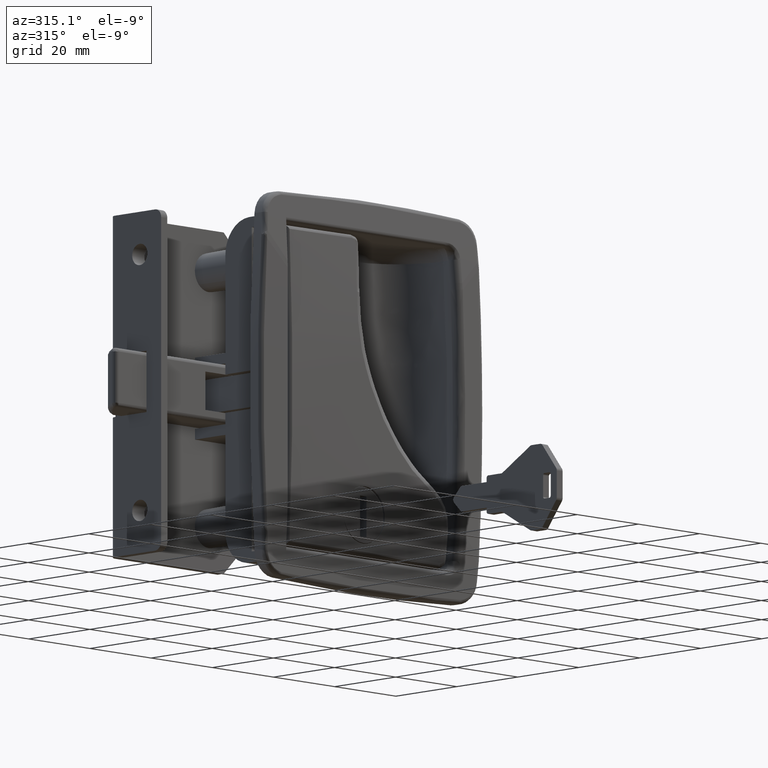
[diagram: clean part render]
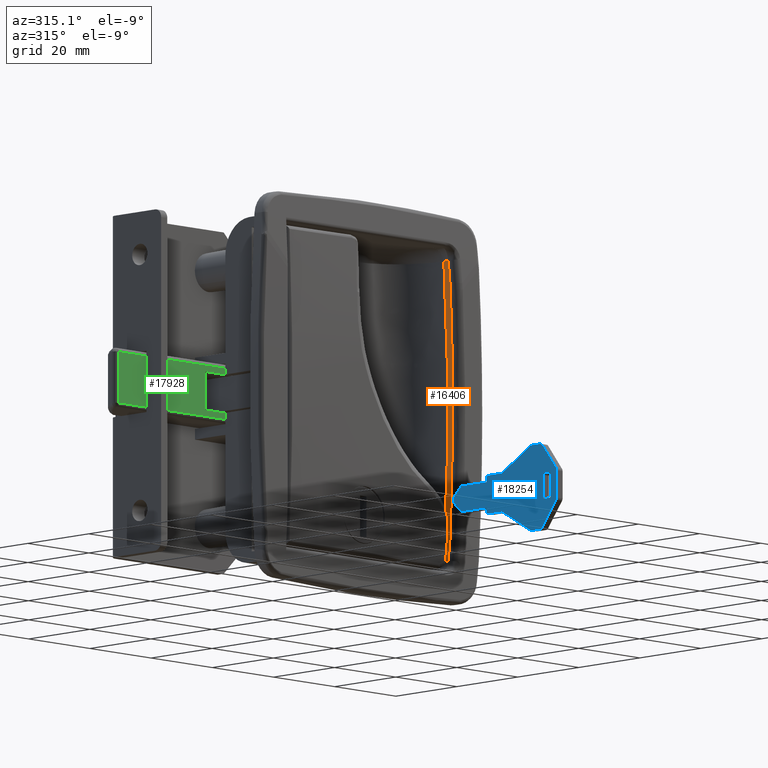
[diagram: same view with three faces highlighted in distinct colors, each labeled with its STEP entity id]
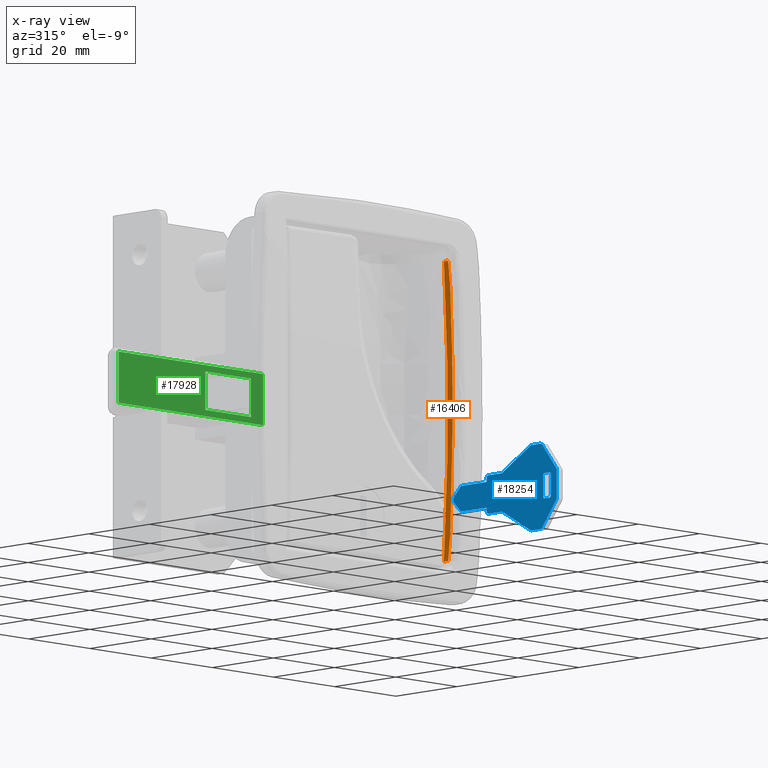
[diagram: x-ray of the same camera — body ghosted, the three highlighted faces saturated]
A machine part, auxiliary view with three faces highlighted in distinct colors.
The next image is the same camera in x-ray (body ghosted, the three faces saturated) — at least one of them is partly hidden behind the body in this view.
Their STEP definitions:

[orange] entity #16406 — the highlighted face is a freeform B-spline surface patch.
#10095=CARTESIAN_POINT('',(26.758622791532201,-30.604169728557949,-35.211307289764001));
#10096=VERTEX_POINT('',#10095);
#10200=CARTESIAN_POINT('',(27.113537786941901,-30.860131355958551,-29.761478573797952));
#10201=VERTEX_POINT('',#10200);
#10213=CARTESIAN_POINT('',(26.758622791532201,-30.604169728557949,-35.211307289764001));
#10214=CARTESIAN_POINT('',(27.113537786941901,-30.860131355958551,-29.761478573797952));
#10215=QUASI_UNIFORM_CURVE('',1,(#10213,#10214),.UNSPECIFIED.,.F.,.U.);
#10216=EDGE_CURVE('',#10096,#10201,#10215,.T.);
#10277=CARTESIAN_POINT('',(27.196989141972651,-30.889219502057500,-28.327593194271849));
#10278=VERTEX_POINT('',#10277);
#10291=CARTESIAN_POINT('',(27.113537786941901,-30.860131355958551,-29.761478573797952));
#10292=CARTESIAN_POINT('',(27.196989141972651,-30.889219502057500,-28.327593194271849));
#10293=QUASI_UNIFORM_CURVE('',1,(#10291,#10292),.UNSPECIFIED.,.F.,.U.);
#10294=EDGE_CURVE('',#10201,#10278,#10293,.T.);
#10357=CARTESIAN_POINT('',(27.197345827099848,-30.889204510851400,28.327967213543950));
#10358=VERTEX_POINT('',#10357);
#10371=CARTESIAN_POINT('',(27.196989141972651,-30.889219502057500,-28.327593194271849));
#10372=CARTESIAN_POINT('',(27.254569357953962,-30.886799591181781,-27.279426471170030));
#10373=CARTESIAN_POINT('',(27.369729717387980,-30.881959772479629,-25.183094345244641));
#10374=CARTESIAN_POINT('',(27.517351379151190,-30.875756583052389,-22.037295222003980));
#10375=CARTESIAN_POINT('',(27.646576948009091,-30.870326840192540,-18.890704624268640));
#10376=CARTESIAN_POINT('',(27.755598388219600,-30.865746399319640,-15.743344890375450));
#10377=CARTESIAN_POINT('',(27.844894514019799,-30.861994935061940,-12.595368370290100));
#10378=CARTESIAN_POINT('',(27.914332377492780,-30.859077893613371,-9.446892609685405));
#10379=CARTESIAN_POINT('',(27.963943953335370,-30.856993815538150,-6.298044505583258));
#10380=CARTESIAN_POINT('',(27.993718008118570,-30.855743092392022,-3.148948469709340));
#10381=CARTESIAN_POINT('',(28.003655940259730,-30.855325617387120,0.000270410241956));
#10382=CARTESIAN_POINT('',(27.993756551021860,-30.855741426119550,3.149487208783639));
#10383=CARTESIAN_POINT('',(27.964021120858881,-30.856990482992689,6.298577000937264));
#10384=CARTESIAN_POINT('',(27.914448333087890,-30.859072894797059,9.447414700600445));
#10385=CARTESIAN_POINT('',(27.845049502715760,-30.861988269967291,12.595875898521330));
#10386=CARTESIAN_POINT('',(27.755792737184699,-30.865738067972821,15.743833701780529));
#10387=CARTESIAN_POINT('',(27.646811063948078,-30.870316842504799,18.891170567624819));
#10388=CARTESIAN_POINT('',(27.517625759083462,-30.875744919320670,22.037734158409389));
#10389=CARTESIAN_POINT('',(27.370044903355740,-30.881946441722839,25.183502117669310));
#10390=CARTESIAN_POINT('',(27.254912183176309,-30.886785154587450,27.279812230302259));
#10391=CARTESIAN_POINT('',(27.197345827099848,-30.889204510851400,28.327967213543950));
#10392=B_SPLINE_CURVE_WITH_KNOTS('',3,(#10371,#10372,#10373,#10374,#10375,#10376,#10377,#10378,#10379,#10380,#10381,#10382,#10383,#10384,#10385,#10386,#10387,#10388,#10389,#10390,#10391),.UNSPECIFIED.,.F.,.U.,(4,1,1,1,1,1,1,1,1,1,1,1,1,1,1,1,1,1,4),(0.0,0.055555974050515,0.111111878122415,0.166667716105144,0.222223491888147,0.277779209360896,0.333334872412882,0.388890484933575,0.444446050812489,0.500001573939135,0.555557058203031,0.611112507493706,0.666667925700701,0.722223316713549,0.777778684421803,0.833334032715016,0.888889365482747,0.944444686614554,1.000000000000000),.UNSPECIFIED.);
#10393=EDGE_CURVE('',#10278,#10358,#10392,.T.);
#10473=CARTESIAN_POINT('',(27.113910496989199,-30.860114897629849,29.761887682028249));
#10474=VERTEX_POINT('',#10473);
#10487=CARTESIAN_POINT('',(27.197345827099848,-30.889204510851400,28.327967213543950));
#10488=CARTESIAN_POINT('',(27.113910496989199,-30.860114897629849,29.761887682028249));
#10489=QUASI_UNIFORM_CURVE('',1,(#10487,#10488),.UNSPECIFIED.,.F.,.U.);
#10490=EDGE_CURVE('',#10358,#10474,#10489,.T.);
#10553=CARTESIAN_POINT('',(26.759081579812399,-30.604162881589399,35.211468298201751));
#10554=VERTEX_POINT('',#10553);
#10566=CARTESIAN_POINT('',(27.113910496989199,-30.860114897629849,29.761887682028249));
#10567=CARTESIAN_POINT('',(26.759081579812399,-30.604162881589399,35.211468298201751));
#10568=QUASI_UNIFORM_CURVE('',1,(#10566,#10567),.UNSPECIFIED.,.F.,.U.);
#10569=EDGE_CURVE('',#10474,#10554,#10568,.T.);
#13532=CARTESIAN_POINT('',(26.758622791532051,-29.199999999999999,-35.211307289764001));
#13533=VERTEX_POINT('',#13532);
#13823=CARTESIAN_POINT('',(26.759081579812449,-29.199999999999999,35.211468298201751));
#13824=VERTEX_POINT('',#13823);
#13934=CARTESIAN_POINT('',(26.758622791532179,-29.199999999999999,-35.211307289763973));
#13935=CARTESIAN_POINT('',(29.244937842971169,-29.199999999999999,0.000064307939087));
#13936=CARTESIAN_POINT('',(26.759081579812449,-29.199999999999999,35.211468298201751));
#13944=(BOUNDED_CURVE()B_SPLINE_CURVE(2,(#13934,#13935,#13936),.UNSPECIFIED.,.F.,.U.)CURVE()GEOMETRIC_REPRESENTATION_ITEM()QUASI_UNIFORM_CURVE()RATIONAL_B_SPLINE_CURVE((1.0,0.997516776139182,1.0))REPRESENTATION_ITEM(''));
#13945=EDGE_CURVE('',#13533,#13824,#13944,.T.);
#13984=CARTESIAN_POINT('',(26.758622791532201,-30.604169728557949,-35.211307289764001));
#13985=CARTESIAN_POINT('',(26.758622791532051,-29.199999999999999,-35.211307289764001));
#13986=QUASI_UNIFORM_CURVE('',1,(#13984,#13985),.UNSPECIFIED.,.F.,.U.);
#13987=EDGE_CURVE('',#10096,#13533,#13986,.T.);
#14007=CARTESIAN_POINT('',(26.759081579812449,-29.199999999999999,35.211468298201751));
#14008=CARTESIAN_POINT('',(26.759081579812399,-30.604162881589399,35.211468298201751));
#14009=QUASI_UNIFORM_CURVE('',1,(#14007,#14008),.UNSPECIFIED.,.F.,.U.);
#14010=EDGE_CURVE('',#13824,#10554,#14009,.T.);
#16382=CARTESIAN_POINT('',(26.499236843947664,-29.157769512448564,38.716650710810157));
#16383=CARTESIAN_POINT('',(26.499236843947664,-30.932505751797724,38.716650710810157));
#16384=CARTESIAN_POINT('',(29.506420937829365,-29.157769512448557,-0.002305512205700));
#16385=CARTESIAN_POINT('',(29.506420937829365,-30.932505751797724,-0.002305512205700));
#16386=CARTESIAN_POINT('',(26.498366658231088,-29.157769512448553,-38.721194140694301));
#16387=CARTESIAN_POINT('',(26.498366658231088,-30.932505751797731,-38.721194140694301));
#16395=(BOUNDED_SURFACE()B_SPLINE_SURFACE(1,2,((#16382,#16384,#16386),(#16383,#16385,#16387)),.UNSPECIFIED.,.F.,.F.,.U.)B_SPLINE_SURFACE_WITH_KNOTS((2,2),(3,3),(0.0,1.0),(17.609950515079500,95.164248017024988),.UNSPECIFIED.)GEOMETRIC_REPRESENTATION_ITEM()RATIONAL_B_SPLINE_SURFACE(((0.998003145779610,0.994306683182898,0.996601251983573),(0.998003145779610,0.994306683182898,0.996601251983573)))REPRESENTATION_ITEM('')SURFACE());
#16396=ORIENTED_EDGE('',*,*,#13987,.F.);
#16397=ORIENTED_EDGE('',*,*,#10216,.T.);
#16398=ORIENTED_EDGE('',*,*,#10294,.T.);
#16399=ORIENTED_EDGE('',*,*,#10393,.T.);
#16400=ORIENTED_EDGE('',*,*,#10490,.T.);
#16401=ORIENTED_EDGE('',*,*,#10569,.T.);
#16402=ORIENTED_EDGE('',*,*,#14010,.F.);
#16403=ORIENTED_EDGE('',*,*,#13945,.F.);
#16404=EDGE_LOOP('',(#16396,#16397,#16398,#16399,#16400,#16401,#16402,#16403));
#16405=FACE_OUTER_BOUND('',#16404,.T.);
#16406=ADVANCED_FACE('',(#16405),#16395,.F.);

[blue] entity #18254 — the highlighted face is a freeform B-spline surface patch.
#17970=CARTESIAN_POINT('',(-3.950000000000096,-98.752650072939815,-17.001000038763880));
#17971=CARTESIAN_POINT('',(-3.950000000000096,-61.356090713217121,-17.001000038763880));
#17972=CARTESIAN_POINT('',(-3.950000000000096,-98.752650072939815,-38.999000497677919));
#17973=CARTESIAN_POINT('',(-3.950000000000096,-61.356090713217121,-38.999000497677919));
#17974=B_SPLINE_SURFACE_WITH_KNOTS('',1,1,((#17970,#17972),(#17971,#17973)),.UNSPECIFIED.,.F.,.F.,.U.,(2,2),(2,2),(0.0,37.396559359722687),(0.0,21.998000458914039),.UNSPECIFIED.);
#17975=CARTESIAN_POINT('',(-3.950000000000120,-88.299642658539398,-18.147855169568800));
#17976=VERTEX_POINT('',#17975);
#17977=CARTESIAN_POINT('',(-3.950000000000120,-88.822948676056399,-18.0));
#17978=VERTEX_POINT('',#17977);
#17979=CARTESIAN_POINT('',(-3.950000000000120,-88.299642658539398,-18.147855169568800));
#17980=CARTESIAN_POINT('',(-3.950000000000127,-88.455957832519616,-18.051432423881309));
#17981=CARTESIAN_POINT('',(-3.950000000000120,-88.639315661924797,-17.999747480380851));
#17982=CARTESIAN_POINT('',(-3.950000000000120,-88.822948676056399,-18.0));
#17983=B_SPLINE_CURVE_WITH_KNOTS('',3,(#17979,#17980,#17981,#17982),.UNSPECIFIED.,.F.,.U.,(4,4),(0.000000029010356,0.550753165426561),.UNSPECIFIED.);
#17984=EDGE_CURVE('',#17976,#17978,#17983,.T.);
#17985=ORIENTED_EDGE('',*,*,#17984,.F.);
#17986=CARTESIAN_POINT('',(-3.950000000000120,-79.054348676056506,-23.500000000000000));
#17987=VERTEX_POINT('',#17986);
#17988=CARTESIAN_POINT('',(-3.950000000000120,-79.054348676056506,-23.500000000000000));
#17989=CARTESIAN_POINT('',(-3.950000000000120,-88.299642658539398,-18.147855169568800));
#17990=QUASI_UNIFORM_CURVE('',1,(#17988,#17989),.UNSPECIFIED.,.F.,.U.);
#17991=EDGE_CURVE('',#17987,#17976,#17990,.T.);
#17992=ORIENTED_EDGE('',*,*,#17991,.F.);
#17993=CARTESIAN_POINT('',(-3.950000000000120,-74.554348676056392,-23.500000000000000));
#17994=VERTEX_POINT('',#17993);
#17995=CARTESIAN_POINT('',(-3.950000000000120,-74.554348676056392,-23.500000000000000));
#17996=CARTESIAN_POINT('',(-3.950000000000120,-79.054348676056506,-23.500000000000000));
#17997=QUASI_UNIFORM_CURVE('',1,(#17995,#17996),.UNSPECIFIED.,.F.,.U.);
#17998=EDGE_CURVE('',#17994,#17987,#17997,.T.);
#17999=ORIENTED_EDGE('',*,*,#17998,.F.);
#18000=CARTESIAN_POINT('',(-3.950000000000120,-74.054348676056492,-24.0));
#18001=VERTEX_POINT('',#18000);
#18002=CARTESIAN_POINT('',(-3.950000000000120,-74.054348676056492,-24.0));
#18003=CARTESIAN_POINT('',(-3.950000000000120,-74.054237184002503,-23.926345759821281));
#18004=CARTESIAN_POINT('',(-3.950000000000123,-74.081976812988927,-23.803730203466881));
#18005=CARTESIAN_POINT('',(-3.950000000000117,-74.187642373025000,-23.645531928958839));
#18006=CARTESIAN_POINT('',(-3.950000000000125,-74.341719806141512,-23.531290552471500));
#18007=CARTESIAN_POINT('',(-3.950000000000117,-74.480695366629831,-23.499887141924098));
#18008=CARTESIAN_POINT('',(-3.950000000000120,-74.554348676056392,-23.500000000000000));
#18009=B_SPLINE_CURVE_WITH_KNOTS('',3,(#18002,#18003,#18004,#18005,#18006,#18007,#18008),.UNSPECIFIED.,.F.,.U.,(4,1,1,1,4),(0.000000378534883,0.220921391118537,0.368215093996019,0.564555929128732,0.785476941711496),.UNSPECIFIED.);
#18010=EDGE_CURVE('',#18001,#17994,#18009,.T.);
#18011=ORIENTED_EDGE('',*,*,#18010,.F.);
#18012=CARTESIAN_POINT('',(-3.950000000000120,-74.054348676056492,-25.0));
#18013=VERTEX_POINT('',#18012);
#18014=CARTESIAN_POINT('',(-3.950000000000120,-74.054348676056492,-25.0));
#18015=CARTESIAN_POINT('',(-3.950000000000120,-74.054348676056492,-24.0));
#18016=QUASI_UNIFORM_CURVE('',1,(#18014,#18015),.UNSPECIFIED.,.F.,.U.);
#18017=EDGE_CURVE('',#18013,#18001,#18016,.T.);
#18018=ORIENTED_EDGE('',*,*,#18017,.F.);
#18019=CARTESIAN_POINT('',(-3.950000000000120,-65.640048676056395,-25.0));
#18020=VERTEX_POINT('',#18019);
#18021=CARTESIAN_POINT('',(-3.950000000000120,-65.640048676056395,-25.0));
#18022=CARTESIAN_POINT('',(-3.950000000000120,-74.054348676056492,-25.0));
#18023=QUASI_UNIFORM_CURVE('',1,(#18021,#18022),.UNSPECIFIED.,.F.,.U.);
#18024=EDGE_CURVE('',#18020,#18013,#18023,.T.);
#18025=ORIENTED_EDGE('',*,*,#18024,.F.);
#18026=CARTESIAN_POINT('',(-3.950000000000120,-63.356228216140387,-27.284019676634450));
#18027=VERTEX_POINT('',#18026);
#18028=CARTESIAN_POINT('',(-3.950000000000120,-63.356228216140387,-27.284019676634450));
#18029=CARTESIAN_POINT('',(-3.950000000000120,-65.640048676056395,-25.0));
#18030=QUASI_UNIFORM_CURVE('',1,(#18028,#18029),.UNSPECIFIED.,.F.,.U.);
#18031=EDGE_CURVE('',#18027,#18020,#18030,.T.);
#18032=ORIENTED_EDGE('',*,*,#18031,.F.);
#18033=CARTESIAN_POINT('',(-3.950000000000120,-63.338307461306997,-28.698058005311950));
#18034=VERTEX_POINT('',#18033);
#18035=CARTESIAN_POINT('',(-3.950000000000120,-63.338307461306997,-28.698058005311950));
#18036=CARTESIAN_POINT('',(-3.950000000000125,-63.223780295208620,-28.581084688618059));
#18037=CARTESIAN_POINT('',(-3.950000000000113,-63.097041002369309,-28.362363250925299));
#18038=CARTESIAN_POINT('',(-3.950000000000130,-63.046205515848612,-28.044896671843389));
#18039=CARTESIAN_POINT('',(-3.950000000000121,-63.063857519878233,-27.806864193721271));
#18040=CARTESIAN_POINT('',(-3.950000000000110,-63.148586269830041,-27.539725201607649));
#18041=CARTESIAN_POINT('',(-3.950000000000141,-63.268286162478731,-27.369626759226009));
#18042=CARTESIAN_POINT('',(-3.950000000000120,-63.356228216140387,-27.284019676634450));
#18043=B_SPLINE_CURVE_WITH_KNOTS('',3,(#18035,#18036,#18037,#18038,#18039,#18040,#18041,#18042),.UNSPECIFIED.,.F.,.U.,(4,1,1,1,1,4),(0.000000306657854,0.490879351851221,0.736330826735464,0.957183011896125,1.202634849029702,1.570786579639568),.UNSPECIFIED.);
#18044=EDGE_CURVE('',#18034,#18027,#18043,.T.);
#18045=ORIENTED_EDGE('',*,*,#18044,.F.);
#18046=CARTESIAN_POINT('',(-3.950000000000120,-65.640048676056395,-31.0));
#18047=VERTEX_POINT('',#18046);
#18048=CARTESIAN_POINT('',(-3.950000000000120,-65.640048676056395,-31.0));
#18049=CARTESIAN_POINT('',(-3.950000000000120,-63.338307461306997,-28.698058005311950));
#18050=QUASI_UNIFORM_CURVE('',1,(#18048,#18049),.UNSPECIFIED.,.F.,.U.);
#18051=EDGE_CURVE('',#18047,#18034,#18050,.T.);
#18052=ORIENTED_EDGE('',*,*,#18051,.F.);
#18053=CARTESIAN_POINT('',(-3.950000000000120,-74.054348676056492,-31.0));
#18054=VERTEX_POINT('',#18053);
#18055=CARTESIAN_POINT('',(-3.950000000000120,-74.054348676056492,-31.0));
#18056=CARTESIAN_POINT('',(-3.950000000000120,-65.640048676056395,-31.0));
#18057=QUASI_UNIFORM_CURVE('',1,(#18055,#18056),.UNSPECIFIED.,.F.,.U.);
#18058=EDGE_CURVE('',#18054,#18047,#18057,.T.);
#18059=ORIENTED_EDGE('',*,*,#18058,.F.);
#18060=CARTESIAN_POINT('',(-3.950000000000120,-74.054348676056392,-32.0));
#18061=VERTEX_POINT('',#18060);
#18062=CARTESIAN_POINT('',(-3.950000000000120,-74.054348676056392,-32.0));
#18063=CARTESIAN_POINT('',(-3.950000000000120,-74.054348676056492,-31.0));
#18064=QUASI_UNIFORM_CURVE('',1,(#18062,#18063),.UNSPECIFIED.,.F.,.U.);
#18065=EDGE_CURVE('',#18061,#18054,#18064,.T.);
#18066=ORIENTED_EDGE('',*,*,#18065,.F.);
#18067=CARTESIAN_POINT('',(-3.950000000000120,-74.554348676056392,-32.500000000000000));
#18068=VERTEX_POINT('',#18067);
#18069=CARTESIAN_POINT('',(-3.950000000000120,-74.554348676056392,-32.500000000000000));
#18070=CARTESIAN_POINT('',(-3.950000000000121,-74.480691519564246,-32.500113950243481));
#18071=CARTESIAN_POINT('',(-3.950000000000124,-74.341740337808346,-32.468702659633813));
#18072=CARTESIAN_POINT('',(-3.950000000000116,-74.174186353746123,-32.344551427558997));
#18073=CARTESIAN_POINT('',(-3.950000000000128,-74.075644816503399,-32.179983951133117));
#18074=CARTESIAN_POINT('',(-3.950000000000112,-74.054315788029044,-32.057267820464943));
#18075=CARTESIAN_POINT('',(-3.950000000000120,-74.054348676056392,-32.0));
#18076=B_SPLINE_CURVE_WITH_KNOTS('',3,(#18069,#18070,#18071,#18072,#18073,#18074,#18075),.UNSPECIFIED.,.F.,.U.,(4,1,1,1,4),(0.000000378535825,0.220921391118588,0.417262226251014,0.613659672706480,0.785476941711680),.UNSPECIFIED.);
#18077=EDGE_CURVE('',#18068,#18061,#18076,.T.);
#18078=ORIENTED_EDGE('',*,*,#18077,.F.);
#18079=CARTESIAN_POINT('',(-3.950000000000120,-79.054348676056506,-32.500000000000000));
#18080=VERTEX_POINT('',#18079);
#18081=CARTESIAN_POINT('',(-3.950000000000120,-79.054348676056506,-32.500000000000000));
#18082=CARTESIAN_POINT('',(-3.950000000000120,-74.554348676056392,-32.500000000000000));
#18083=QUASI_UNIFORM_CURVE('',1,(#18081,#18082),.UNSPECIFIED.,.F.,.U.);
#18084=EDGE_CURVE('',#18080,#18068,#18083,.T.);
#18085=ORIENTED_EDGE('',*,*,#18084,.F.);
#18086=CARTESIAN_POINT('',(-3.950000000000120,-88.321848676056405,-37.866000000000000));
#18087=VERTEX_POINT('',#18086);
#18088=CARTESIAN_POINT('',(-3.950000000000120,-88.321848676056405,-37.866000000000000));
#18089=CARTESIAN_POINT('',(-3.950000000000120,-79.054348676056506,-32.500000000000000));
#18090=QUASI_UNIFORM_CURVE('',1,(#18088,#18089),.UNSPECIFIED.,.F.,.U.);
#18091=EDGE_CURVE('',#18087,#18080,#18090,.T.);
#18092=ORIENTED_EDGE('',*,*,#18091,.F.);
#18093=CARTESIAN_POINT('',(-3.950000000000120,-88.822948676056399,-38.0));
#18094=VERTEX_POINT('',#18093);
#18095=CARTESIAN_POINT('',(-3.950000000000120,-88.822948676056399,-38.0));
#18096=CARTESIAN_POINT('',(-3.950000000000122,-88.647954888872235,-38.000705535396847));
#18097=CARTESIAN_POINT('',(-3.950000000000125,-88.473166052772470,-37.953833344985973));
#18098=CARTESIAN_POINT('',(-3.950000000000120,-88.321848676056405,-37.866000000000000));
#18099=B_SPLINE_CURVE_WITH_KNOTS('',3,(#18095,#18096,#18097,#18098),.UNSPECIFIED.,.F.,.U.,(4,4),(0.000000023208729,0.524784620495283),.UNSPECIFIED.);
#18100=EDGE_CURVE('',#18094,#18087,#18099,.T.);
#18101=ORIENTED_EDGE('',*,*,#18100,.F.);
#18102=CARTESIAN_POINT('',(-3.950000000000120,-91.561948676056389,-38.0));
#18103=VERTEX_POINT('',#18102);
#18104=CARTESIAN_POINT('',(-3.950000000000120,-91.561948676056389,-38.0));
#18105=CARTESIAN_POINT('',(-3.950000000000120,-88.822948676056399,-38.0));
#18106=QUASI_UNIFORM_CURVE('',1,(#18104,#18105),.UNSPECIFIED.,.F.,.U.);
#18107=EDGE_CURVE('',#18103,#18094,#18106,.T.);
#18108=ORIENTED_EDGE('',*,*,#18107,.F.);
#18109=CARTESIAN_POINT('',(-3.950000000000120,-92.354548676056396,-37.609999999999999));
#18110=VERTEX_POINT('',#18109);
#18111=CARTESIAN_POINT('',(-3.950000000000120,-92.354548676056396,-37.609999999999999));
#18112=CARTESIAN_POINT('',(-3.950000000000126,-92.267506362158059,-37.723458490101770));
#18113=CARTESIAN_POINT('',(-3.950000000000110,-92.028743360765461,-37.924378807424887));
#18114=CARTESIAN_POINT('',(-3.950000000000113,-91.724031520274352,-38.000449113911031));
#18115=CARTESIAN_POINT('',(-3.950000000000120,-91.561948676056389,-38.0));
#18116=B_SPLINE_CURVE_WITH_KNOTS('',3,(#18111,#18112,#18113,#18114,#18115),.UNSPECIFIED.,.F.,.U.,(4,1,4),(0.000000094230241,0.428942376736610,0.915036785654134),.UNSPECIFIED.);
#18117=EDGE_CURVE('',#18110,#18103,#18116,.T.);
#18118=ORIENTED_EDGE('',*,*,#18117,.F.);
#18119=CARTESIAN_POINT('',(-3.950000000000120,-96.872651613587195,-31.734787180118399));
#18120=VERTEX_POINT('',#18119);
#18121=CARTESIAN_POINT('',(-3.950000000000120,-96.872651613587195,-31.734787180118399));
#18122=CARTESIAN_POINT('',(-3.950000000000120,-92.354548676056396,-37.609999999999999));
#18123=QUASI_UNIFORM_CURVE('',1,(#18121,#18122),.UNSPECIFIED.,.F.,.U.);
#18124=EDGE_CURVE('',#18120,#18110,#18123,.T.);
#18125=ORIENTED_EDGE('',*,*,#18124,.F.);
#18126=CARTESIAN_POINT('',(-3.950000000000120,-97.054348676056406,-31.160000000000000));
#18127=VERTEX_POINT('',#18126);
#18128=CARTESIAN_POINT('',(-3.950000000000120,-97.054348676056406,-31.160000000000000));
#18129=CARTESIAN_POINT('',(-3.950000000000111,-97.054815825906289,-31.364241887333769));
#18130=CARTESIAN_POINT('',(-3.950000000000123,-96.990431275418530,-31.567926721917129));
#18131=CARTESIAN_POINT('',(-3.950000000000120,-96.872651613587195,-31.734787180118399));
#18132=B_SPLINE_CURVE_WITH_KNOTS('',3,(#18128,#18129,#18130,#18131),.UNSPECIFIED.,.F.,.U.,(4,4),(0.000000024440869,0.612381397390587),.UNSPECIFIED.);
#18133=EDGE_CURVE('',#18127,#18120,#18132,.T.);
#18134=ORIENTED_EDGE('',*,*,#18133,.F.);
#18135=CARTESIAN_POINT('',(-3.950000000000120,-97.054348676056406,-24.840000000000000));
#18136=VERTEX_POINT('',#18135);
#18137=CARTESIAN_POINT('',(-3.950000000000120,-97.054348676056406,-24.840000000000000));
#18138=CARTESIAN_POINT('',(-3.950000000000120,-97.054348676056406,-31.160000000000000));
#18139=QUASI_UNIFORM_CURVE('',1,(#18137,#18138),.UNSPECIFIED.,.F.,.U.);
#18140=EDGE_CURVE('',#18136,#18127,#18139,.T.);
#18141=ORIENTED_EDGE('',*,*,#18140,.F.);
#18142=CARTESIAN_POINT('',(-3.950000000000120,-96.864945806396605,-24.254395788706749));
#18143=VERTEX_POINT('',#18142);
#18144=CARTESIAN_POINT('',(-3.950000000000120,-96.864945806396605,-24.254395788706749));
#18145=CARTESIAN_POINT('',(-3.950000000000116,-96.933726562449806,-24.349437920039779));
#18146=CARTESIAN_POINT('',(-3.950000000000130,-97.025604830563807,-24.540235992030059));
#18147=CARTESIAN_POINT('',(-3.950000000000113,-97.054379700925182,-24.748758941509791));
#18148=CARTESIAN_POINT('',(-3.950000000000120,-97.054348676056406,-24.840000000000000));
#18149=B_SPLINE_CURVE_WITH_KNOTS('',3,(#18144,#18145,#18146,#18147,#18148),.UNSPECIFIED.,.F.,.U.,(4,1,4),(0.000000027121419,0.351936498225576,0.625665077524661),.UNSPECIFIED.);
#18150=EDGE_CURVE('',#18143,#18136,#18149,.T.);
#18151=ORIENTED_EDGE('',*,*,#18150,.F.);
#18152=CARTESIAN_POINT('',(-3.950000000000120,-92.372545806396488,-18.414395788706699));
#18153=VERTEX_POINT('',#18152);
#18154=CARTESIAN_POINT('',(-3.950000000000120,-92.372545806396488,-18.414395788706699));
#18155=CARTESIAN_POINT('',(-3.950000000000120,-96.864945806396605,-24.254395788706749));
#18156=QUASI_UNIFORM_CURVE('',1,(#18154,#18155),.UNSPECIFIED.,.F.,.U.);
#18157=EDGE_CURVE('',#18153,#18143,#18156,.T.);
#18158=ORIENTED_EDGE('',*,*,#18157,.F.);
#18159=CARTESIAN_POINT('',(-3.950000000000120,-91.561948676056389,-18.0));
#18160=VERTEX_POINT('',#18159);
#18161=CARTESIAN_POINT('',(-3.950000000000120,-91.561948676056389,-18.0));
#18162=CARTESIAN_POINT('',(-3.950000000000123,-91.729398764183145,-17.999613693406829));
#18163=CARTESIAN_POINT('',(-3.950000000000112,-92.043991721965526,-18.081125525054102));
#18164=CARTESIAN_POINT('',(-3.950000000000129,-92.286225528870560,-18.294508670155938));
#18165=CARTESIAN_POINT('',(-3.950000000000120,-92.372545806396488,-18.414395788706699));
#18166=B_SPLINE_CURVE_WITH_KNOTS('',3,(#18161,#18162,#18163,#18164,#18165),.UNSPECIFIED.,.F.,.U.,(4,1,4),(0.000000110270843,0.502119738241310,0.945205424779409),.UNSPECIFIED.);
#18167=EDGE_CURVE('',#18160,#18153,#18166,.T.);
#18168=ORIENTED_EDGE('',*,*,#18167,.F.);
#18169=CARTESIAN_POINT('',(-3.950000000000120,-88.822948676056399,-18.0));
#18170=CARTESIAN_POINT('',(-3.950000000000120,-91.561948676056389,-18.0));
#18171=QUASI_UNIFORM_CURVE('',1,(#18169,#18170),.UNSPECIFIED.,.F.,.U.);
#18172=EDGE_CURVE('',#17978,#18160,#18171,.T.);
#18173=ORIENTED_EDGE('',*,*,#18172,.F.);
#18174=EDGE_LOOP('',(#17985,#17992,#17999,#18011,#18018,#18025,#18032,#18045,#18052,#18059,#18066,#18078,#18085,#18092,#18101,#18108,#18118,#18125,#18134,#18141,#18151,#18158,#18168,#18173));
#18175=FACE_OUTER_BOUND('',#18174,.T.);
#18176=CARTESIAN_POINT('',(-3.950000000000120,-93.054348676056406,-25.0));
#18177=VERTEX_POINT('',#18176);
#18178=CARTESIAN_POINT('',(-3.950000000000120,-94.554348676056406,-25.0));
#18179=VERTEX_POINT('',#18178);
#18180=CARTESIAN_POINT('',(-3.950000000000120,-93.054348676056406,-25.0));
#18181=CARTESIAN_POINT('',(-3.950000000000120,-94.554348676056406,-25.0));
#18182=QUASI_UNIFORM_CURVE('',1,(#18180,#18181),.UNSPECIFIED.,.F.,.U.);
#18183=EDGE_CURVE('',#18177,#18179,#18182,.T.);
#18184=ORIENTED_EDGE('',*,*,#18183,.T.);
#18185=CARTESIAN_POINT('',(-3.950000000000120,-95.054348676056406,-25.500000000000000));
#18186=VERTEX_POINT('',#18185);
#18187=CARTESIAN_POINT('',(-3.950000000000120,-94.554348676056406,-25.0));
#18188=CARTESIAN_POINT('',(-3.950000000000126,-94.628004893815373,-24.999890122679599));
#18189=CARTESIAN_POINT('',(-3.950000000000115,-94.734263976430029,-25.023930364327640));
#18190=CARTESIAN_POINT('',(-3.950000000000124,-94.882360854016014,-25.112692768078489));
#18191=CARTESIAN_POINT('',(-3.950000000000124,-95.011205551158483,-25.254779608255319));
#18192=CARTESIAN_POINT('',(-3.950000000000116,-95.054600544646718,-25.409955061185169));
#18193=CARTESIAN_POINT('',(-3.950000000000120,-95.054348676056406,-25.500000000000000));
#18194=B_SPLINE_CURVE_WITH_KNOTS('',3,(#18187,#18188,#18189,#18190,#18191,#18192,#18193),.UNSPECIFIED.,.F.,.U.,(4,1,1,1,4),(0.000000378535350,0.220921391118586,0.319128283928488,0.515464186318132,0.785476941711657),.UNSPECIFIED.);
#18195=EDGE_CURVE('',#18179,#18186,#18194,.T.);
#18196=ORIENTED_EDGE('',*,*,#18195,.T.);
#18197=CARTESIAN_POINT('',(-3.950000000000120,-95.054348676056406,-30.500000000000000));
#18198=VERTEX_POINT('',#18197);
#18199=CARTESIAN_POINT('',(-3.950000000000120,-95.054348676056406,-25.500000000000000));
#18200=CARTESIAN_POINT('',(-3.950000000000120,-95.054348676056406,-30.500000000000000));
#18201=QUASI_UNIFORM_CURVE('',1,(#18199,#18200),.UNSPECIFIED.,.F.,.U.);
#18202=EDGE_CURVE('',#18186,#18198,#18201,.T.);
#18203=ORIENTED_EDGE('',*,*,#18202,.T.);
#18204=CARTESIAN_POINT('',(-3.950000000000120,-94.554348676056406,-31.0));
#18205=VERTEX_POINT('',#18204);
#18206=CARTESIAN_POINT('',(-3.950000000000120,-95.054348676056406,-30.500000000000000));
#18207=CARTESIAN_POINT('',(-3.950000000000127,-95.054451602499910,-30.573649593925499));
#18208=CARTESIAN_POINT('',(-3.950000000000109,-95.023070952499239,-30.712633185153749));
#18209=CARTESIAN_POINT('',(-3.950000000000130,-94.908812553420020,-30.866706294467210));
#18210=CARTESIAN_POINT('',(-3.950000000000107,-94.750616511741114,-30.972365973825770));
#18211=CARTESIAN_POINT('',(-3.950000000000122,-94.628004610533154,-31.000118623638841));
#18212=CARTESIAN_POINT('',(-3.950000000000120,-94.554348676056406,-31.0));
#18213=B_SPLINE_CURVE_WITH_KNOTS('',3,(#18206,#18207,#18208,#18209,#18210,#18211,#18212),.UNSPECIFIED.,.F.,.U.,(4,1,1,1,4),(0.000000378537671,0.220921391120155,0.417262226252052,0.564555929128945,0.785476941711605),.UNSPECIFIED.);
#18214=EDGE_CURVE('',#18198,#18205,#18213,.T.);
#18215=ORIENTED_EDGE('',*,*,#18214,.T.);
#18216=CARTESIAN_POINT('',(-3.950000000000120,-93.054348676056406,-31.0));
#18217=VERTEX_POINT('',#18216);
#18218=CARTESIAN_POINT('',(-3.950000000000120,-94.554348676056406,-31.0));
#18219=CARTESIAN_POINT('',(-3.950000000000120,-93.054348676056406,-31.0));
#18220=QUASI_UNIFORM_CURVE('',1,(#18218,#18219),.UNSPECIFIED.,.F.,.U.);
#18221=EDGE_CURVE('',#18205,#18217,#18220,.T.);
#18222=ORIENTED_EDGE('',*,*,#18221,.T.);
#18223=CARTESIAN_POINT('',(-3.950000000000120,-92.554348676056406,-30.500000000000000));
#18224=VERTEX_POINT('',#18223);
#18225=CARTESIAN_POINT('',(-3.950000000000120,-93.054348676056406,-31.0));
#18226=CARTESIAN_POINT('',(-3.950000000000125,-92.980693002704541,-31.000104061810699));
#18227=CARTESIAN_POINT('',(-3.950000000000117,-92.841737582506937,-30.968715462335609));
#18228=CARTESIAN_POINT('',(-3.950000000000121,-92.674187786966570,-30.844545238216959));
#18229=CARTESIAN_POINT('',(-3.950000000000127,-92.575643765602777,-30.679987760382129));
#18230=CARTESIAN_POINT('',(-3.950000000000109,-92.554316463738772,-30.557265309166532));
#18231=CARTESIAN_POINT('',(-3.950000000000120,-92.554348676056406,-30.500000000000000));
#18232=B_SPLINE_CURVE_WITH_KNOTS('',3,(#18225,#18226,#18227,#18228,#18229,#18230,#18231),.UNSPECIFIED.,.F.,.U.,(4,1,1,1,4),(0.000000378538746,0.220921391120985,0.417262226252677,0.613659672707331,0.785476941711554),.UNSPECIFIED.);
#18233=EDGE_CURVE('',#18217,#18224,#18232,.T.);
#18234=ORIENTED_EDGE('',*,*,#18233,.T.);
#18235=CARTESIAN_POINT('',(-3.950000000000120,-92.554348676056406,-25.500000000000000));
#18236=VERTEX_POINT('',#18235);
#18237=CARTESIAN_POINT('',(-3.950000000000120,-92.554348676056406,-30.500000000000000));
#18238=CARTESIAN_POINT('',(-3.950000000000120,-92.554348676056406,-25.500000000000000));
#18239=QUASI_UNIFORM_CURVE('',1,(#18237,#18238),.UNSPECIFIED.,.F.,.U.);
#18240=EDGE_CURVE('',#18224,#18236,#18239,.T.);
#18241=ORIENTED_EDGE('',*,*,#18240,.T.);
#18242=CARTESIAN_POINT('',(-3.950000000000120,-92.554348676056406,-25.500000000000000));
#18243=CARTESIAN_POINT('',(-3.950000000000121,-92.554315884366275,-25.442733168346720));
#18244=CARTESIAN_POINT('',(-3.950000000000118,-92.575644367349653,-25.320015755666610));
#18245=CARTESIAN_POINT('',(-3.950000000000125,-92.674186657405770,-25.155448577822089));
#18246=CARTESIAN_POINT('',(-3.950000000000116,-92.841739885242447,-25.031297418787830));
#18247=CARTESIAN_POINT('',(-3.950000000000121,-92.980691939558682,-24.999885791673300));
#18248=CARTESIAN_POINT('',(-3.950000000000120,-93.054348676056406,-25.0));
#18249=B_SPLINE_CURVE_WITH_KNOTS('',3,(#18242,#18243,#18244,#18245,#18246,#18247,#18248),.UNSPECIFIED.,.F.,.U.,(4,1,1,1,4),(0.000000378535974,0.171817647541160,0.368215093996624,0.564555929128946,0.785476941711612),.UNSPECIFIED.);
#18250=EDGE_CURVE('',#18236,#18177,#18249,.T.);
#18251=ORIENTED_EDGE('',*,*,#18250,.T.);
#18252=EDGE_LOOP('',(#18184,#18196,#18203,#18215,#18222,#18234,#18241,#18251));
#18253=FACE_BOUND('',#18252,.T.);
#18254=ADVANCED_FACE('',(#18175,#18253),#17974,.T.);

[green] entity #17928 — the highlighted face is a freeform B-spline surface patch.
#17028=CARTESIAN_POINT('',(-62.416293844871007,-12.0,6.000199999999900));
#17029=VERTEX_POINT('',#17028);
#17174=CARTESIAN_POINT('',(-62.416293844871007,-12.0,-6.0));
#17175=VERTEX_POINT('',#17174);
#17392=CARTESIAN_POINT('',(-15.194000000000001,-12.0,6.000199999999900));
#17393=VERTEX_POINT('',#17392);
#17442=CARTESIAN_POINT('',(-15.194000000000001,-12.0,6.000199999999900));
#17443=CARTESIAN_POINT('',(-62.416293844871007,-12.0,6.000199999999900));
#17444=QUASI_UNIFORM_CURVE('',1,(#17442,#17443),.UNSPECIFIED.,.F.,.U.);
#17445=EDGE_CURVE('',#17393,#17029,#17444,.T.);
#17464=CARTESIAN_POINT('',(-15.194000000000001,-12.0,-5.999999999999890));
#17465=VERTEX_POINT('',#17464);
#17577=CARTESIAN_POINT('',(-62.416293844871007,-12.0,-6.0));
#17578=CARTESIAN_POINT('',(-15.194000000000001,-12.0,-5.999999999999890));
#17579=QUASI_UNIFORM_CURVE('',1,(#17577,#17578),.UNSPECIFIED.,.F.,.U.);
#17580=EDGE_CURVE('',#17175,#17465,#17579,.T.);
#17639=CARTESIAN_POINT('',(-62.416293844871007,-12.0,6.000199999999900));
#17640=CARTESIAN_POINT('',(-62.416293844871007,-12.0,-6.0));
#17641=QUASI_UNIFORM_CURVE('',1,(#17639,#17640),.UNSPECIFIED.,.F.,.U.);
#17642=EDGE_CURVE('',#17029,#17175,#17641,.T.);
#17681=CARTESIAN_POINT('',(-15.194000000000001,-12.0,-5.999999999999890));
#17682=CARTESIAN_POINT('',(-15.194000000000001,-12.0,6.000199999999900));
#17683=QUASI_UNIFORM_CURVE('',1,(#17681,#17682),.UNSPECIFIED.,.F.,.U.);
#17684=EDGE_CURVE('',#17465,#17393,#17683,.T.);
#17719=CARTESIAN_POINT('',(-19.193999999999999,-12.0,4.500199999999841));
#17720=VERTEX_POINT('',#17719);
#17726=CARTESIAN_POINT('',(-34.067697418241053,-12.0,4.500199999999841));
#17727=VERTEX_POINT('',#17726);
#17728=CARTESIAN_POINT('',(-19.193999999999999,-12.0,4.500199999999841));
#17729=CARTESIAN_POINT('',(-34.067697418241053,-12.0,4.500199999999841));
#17730=QUASI_UNIFORM_CURVE('',1,(#17728,#17729),.UNSPECIFIED.,.F.,.U.);
#17731=EDGE_CURVE('',#17720,#17727,#17730,.T.);
#17755=CARTESIAN_POINT('',(-34.067697418241053,-12.0,-4.499999999999949));
#17756=VERTEX_POINT('',#17755);
#17762=CARTESIAN_POINT('',(-19.193999999999999,-12.0,-4.499999999999949));
#17763=VERTEX_POINT('',#17762);
#17764=CARTESIAN_POINT('',(-19.193999999999999,-12.0,-4.499999999999949));
#17765=CARTESIAN_POINT('',(-34.067697418241053,-12.0,-4.499999999999949));
#17766=QUASI_UNIFORM_CURVE('',1,(#17764,#17765),.UNSPECIFIED.,.F.,.U.);
#17767=EDGE_CURVE('',#17763,#17756,#17766,.T.);
#17790=CARTESIAN_POINT('',(-34.067697418241053,-12.0,-4.499999999999949));
#17791=CARTESIAN_POINT('',(-34.067697418241053,-12.0,4.500199999999841));
#17792=QUASI_UNIFORM_CURVE('',1,(#17790,#17791),.UNSPECIFIED.,.F.,.U.);
#17793=EDGE_CURVE('',#17756,#17727,#17792,.T.);
#17816=CARTESIAN_POINT('',(-19.193999999999999,-12.0,-4.499999999999949));
#17817=CARTESIAN_POINT('',(-19.193999999999999,-12.0,4.500199999999841));
#17818=QUASI_UNIFORM_CURVE('',1,(#17816,#17817),.UNSPECIFIED.,.F.,.U.);
#17819=EDGE_CURVE('',#17763,#17720,#17818,.T.);
#17911=CARTESIAN_POINT('',(-64.775047774185467,-12.0,6.599609741442594));
#17912=CARTESIAN_POINT('',(-64.775047774185467,-12.0,-6.599410277893439));
#17913=CARTESIAN_POINT('',(-12.835245226285140,-12.0,6.599609741442595));
#17914=CARTESIAN_POINT('',(-12.835245226285140,-12.0,-6.599410277893439));
#17915=B_SPLINE_SURFACE_WITH_KNOTS('',1,1,((#17911,#17913),(#17912,#17914)),.UNSPECIFIED.,.F.,.F.,.U.,(2,2),(2,2),(0.0,13.199020019336031),(0.0,51.939802547900328),.UNSPECIFIED.);
#17916=ORIENTED_EDGE('',*,*,#17684,.T.);
#17917=ORIENTED_EDGE('',*,*,#17445,.T.);
#17918=ORIENTED_EDGE('',*,*,#17642,.T.);
#17919=ORIENTED_EDGE('',*,*,#17580,.T.);
#17920=EDGE_LOOP('',(#17916,#17917,#17918,#17919));
#17921=FACE_OUTER_BOUND('',#17920,.T.);
#17922=ORIENTED_EDGE('',*,*,#17767,.T.);
#17923=ORIENTED_EDGE('',*,*,#17793,.T.);
#17924=ORIENTED_EDGE('',*,*,#17731,.F.);
#17925=ORIENTED_EDGE('',*,*,#17819,.F.);
#17926=EDGE_LOOP('',(#17922,#17923,#17924,#17925));
#17927=FACE_BOUND('',#17926,.T.);
#17928=ADVANCED_FACE('',(#17921,#17927),#17915,.T.);